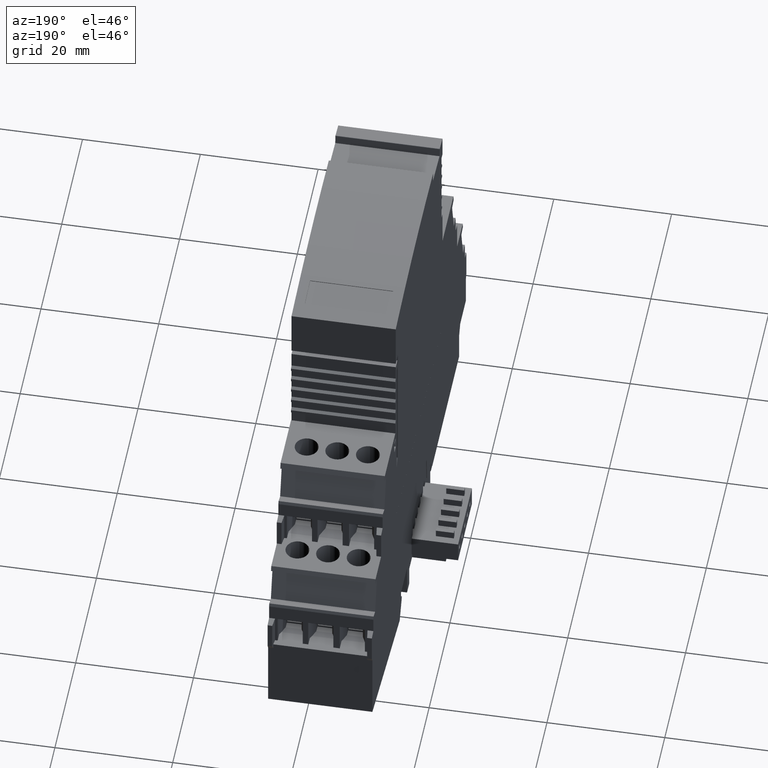
[diagram: clean part render]
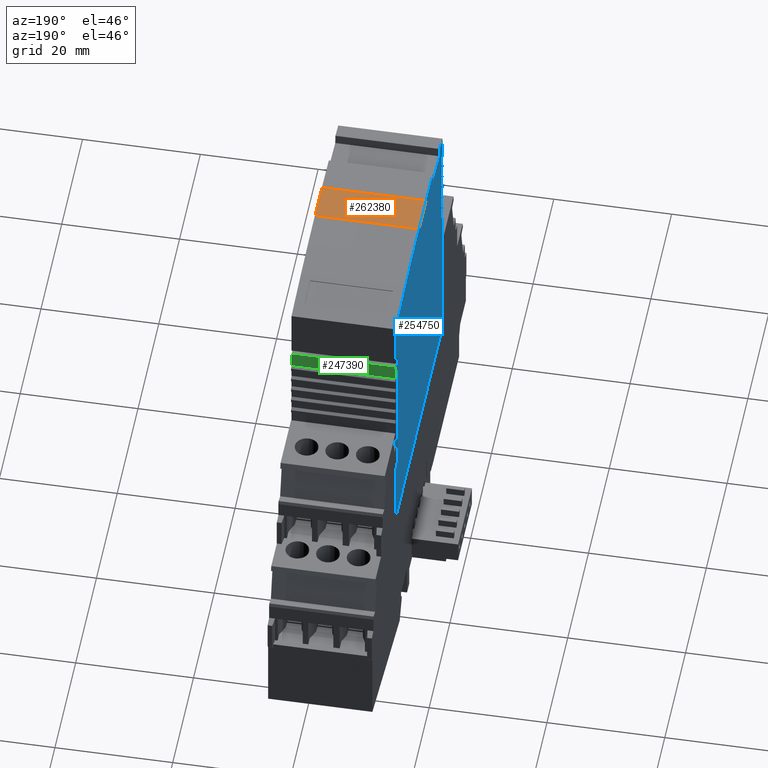
[diagram: same view with three faces highlighted in distinct colors, each labeled with its STEP entity id]
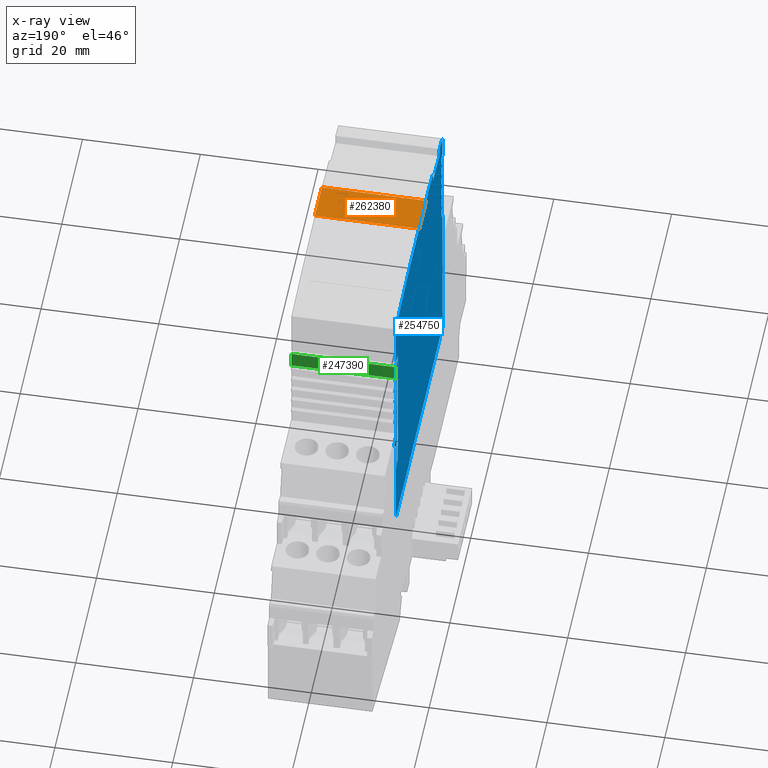
[diagram: x-ray of the same camera — body ghosted, the three highlighted faces saturated]
A machine part, auxiliary view with three faces highlighted in distinct colors.
The next image is the same camera in x-ray (body ghosted, the three faces saturated) — at least one of them is partly hidden behind the body in this view.
Their STEP definitions:

[orange] entity #262380 — the highlighted planar face has unit normal (0, 0.0168, -0.9999).
#200=CARTESIAN_POINT('',(111.425786875025,97.6368417631764,
-18.6373414451668));
#210=VERTEX_POINT('',#200);
#240=CARTESIAN_POINT('',(111.425786875483,97.6368417646088,
13.4136236350484));
#250=DIRECTION('',(2.21531981138869E-11,-4.28486666181899E-11,-1.));
#260=VECTOR('',#250,1.);
#270=LINE('',#240,#260);
#280=CARTESIAN_POINT('',(111.425786875801,97.6368417639938,
-0.939341448721994));
#290=VERTEX_POINT('',#280);
#300=EDGE_CURVE('',#290,#210,#270,.T.);
#236560=CARTESIAN_POINT('',(150.854165358034,98.3001391778686,
-0.939341448745957));
#236570=DIRECTION('',(0.999858526007718,0.0168204628257921,
-6.07643577831348E-13));
#236580=VECTOR('',#236570,1.);
#236590=LINE('',#236560,#236580);
#236600=CARTESIAN_POINT('',(118.15302014598,97.750012951915,
-0.939341448726081));
#236610=VERTEX_POINT('',#236600);
#236620=EDGE_CURVE('',#290,#236610,#236590,.T.);
#252120=CARTESIAN_POINT('',(118.153020145202,97.7500129511501,
-18.6373414451726));
#252130=VERTEX_POINT('',#252120);
#252160=CARTESIAN_POINT('',(150.854165357256,98.3001391770775,
-18.6373414452011));
#252170=DIRECTION('',(0.999858526007718,0.0168204628257921,
-8.7124521834688E-13));
#252180=VECTOR('',#252170,1.);
#252190=LINE('',#252160,#252180);
#252200=EDGE_CURVE('',#210,#252130,#252190,.T.);
#262220=CARTESIAN_POINT('',(111.42578687899,97.6368417641235,
0.820660960238007));
#262230=DIRECTION('',(0.0168204628257921,-0.999858526007718,
4.32152316916065E-11));
#262240=DIRECTION('',(0.999858526007718,0.0168204628257921,
-4.46940582192536E-11));
#262250=AXIS2_PLACEMENT_3D('',#262220,#262230,#262240);
#262260=PLANE('',#262250);
#262270=CARTESIAN_POINT('',(118.153020146294,97.7500129525406,
13.4136236347478));
#262280=DIRECTION('',(2.1914507247867E-11,4.3590010698952E-11,1.));
#262290=VECTOR('',#262280,1.);
#262300=LINE('',#262270,#262290);
#262310=EDGE_CURVE('',#252130,#236610,#262300,.T.);
#262320=ORIENTED_EDGE('',*,*,#262310,.F.);
#262330=ORIENTED_EDGE('',*,*,#236620,.T.);
#262340=ORIENTED_EDGE('',*,*,#300,.F.);
#262350=ORIENTED_EDGE('',*,*,#252200,.F.);
#262360=EDGE_LOOP('',(#262350,#262340,#262330,#262320));
#262370=FACE_OUTER_BOUND('',#262360,.T.);
#262380=ADVANCED_FACE('',(#262370),#262260,.F.);

[blue] entity #254750 — the highlighted planar face has unit normal (-1, -0, -0).
#100=CARTESIAN_POINT('',(104.706166900064,97.2974562768639,
-18.637341445151));
#110=VERTEX_POINT('',#100);
#160=CARTESIAN_POINT('',(150.854165357256,99.628237028916,
-18.6373414452595));
#170=DIRECTION('',(0.99872697423682,0.0504423525597932,
-2.34914766661072E-12));
#180=VECTOR('',#170,1.);
#190=LINE('',#160,#180);
#200=CARTESIAN_POINT('',(111.425786875025,97.6368417631764,
-18.6373414451668));
#210=VERTEX_POINT('',#200);
#220=EDGE_CURVE('',#110,#210,#190,.T.);
#45610=CARTESIAN_POINT('',(95.6530205022971,71.8738971792623,
-18.6373414440321));
#45620=VERTEX_POINT('',#45610);
#52030=CARTESIAN_POINT('',(95.6530205022971,51.1748719510808,
-18.6373414431222));
#52040=VERTEX_POINT('',#52030);
#52070=CARTESIAN_POINT('',(95.6530205022971,47.3424286051269,
-18.6373414429537));
#52080=DIRECTION('',(-2.58276127882993E-26,-1.,4.39608926050624E-11));
#52090=VECTOR('',#52080,1.);
#52100=LINE('',#52070,#52090);
#52110=EDGE_CURVE('',#45620,#52040,#52100,.T.);
#52180=CARTESIAN_POINT('',(140.653020451244,51.1748719510808,
-18.6373414431281));
#52190=VERTEX_POINT('',#52180);
#52220=CARTESIAN_POINT('',(150.854165357256,51.1748719510808,
-18.6373414431295));
#52230=DIRECTION('',(1.,-2.48441521817153E-16,-1.3182048241892E-13));
#52240=VECTOR('',#52230,1.);
#52250=LINE('',#52220,#52240);
#52260=EDGE_CURVE('',#52040,#52190,#52250,.T.);
#52330=CARTESIAN_POINT('',(140.653020451249,68.3024770570695,
-18.6373414438811));
#52340=VERTEX_POINT('',#52330);
#52370=CARTESIAN_POINT('',(140.653020451244,47.3424286051269,
-18.6373414429596));
#52380=DIRECTION('',(2.58276127882993E-26,1.,-4.39608926050624E-11));
#52390=VECTOR('',#52380,1.);
#52400=LINE('',#52370,#52390);
#52410=EDGE_CURVE('',#52190,#52340,#52400,.T.);
#52640=CARTESIAN_POINT('',(140.660999291445,68.301822478959,
-18.637341443881));
#52650=VERTEX_POINT('',#52640);
#52680=CARTESIAN_POINT('',(150.854165357256,67.4655827223891,
-18.6373414438456));
#52690=DIRECTION('',(0.996651672605884,-0.0817645613447162,
3.46306617125706E-12));
#52700=VECTOR('',#52690,1.);
#52710=LINE('',#52680,#52700);
#52720=EDGE_CURVE('',#52340,#52650,#52710,.T.);
#242300=CARTESIAN_POINT('',(141.787510168574,69.4428365188626,
-18.6373414439313));
#242310=VERTEX_POINT('',#242300);
#242340=CARTESIAN_POINT('',(119.968015374366,47.3424286051269,
-18.6373414429569));
#242350=DIRECTION('',(-0.702569732676626,-0.711614903389955,
3.1375848293053E-11));
#242360=VECTOR('',#242350,1.);
#242370=LINE('',#242340,#242360);
#242380=EDGE_CURVE('',#242310,#52650,#242370,.T.);
#242590=CARTESIAN_POINT('',(141.825489479447,70.167524955897,
-18.6373414439632));
#242600=VERTEX_POINT('',#242590);
#242680=CARTESIAN_POINT('',(140.701590320517,70.1871426886483,
-18.6373414439639));
#242690=VERTEX_POINT('',#242680);
#242720=CARTESIAN_POINT('',(150.854165357256,70.0099288321934,
-18.6373414439575));
#242730=DIRECTION('',(0.999847695156391,-0.0174524064372835,
6.35423844768312E-13));
#242740=VECTOR('',#242730,1.);
#242750=LINE('',#242720,#242740);
#242760=EDGE_CURVE('',#242690,#242600,#242750,.T.);
#242980=CARTESIAN_POINT('',(141.11874753296,73.8030236818366,
-18.6373414441229));
#242990=VERTEX_POINT('',#242980);
#243020=CARTESIAN_POINT('',(150.854165357256,73.8030236818368,
-18.6373414441242));
#243030=DIRECTION('',(-1.,-2.37310172835481E-14,1.31820482419987E-13));
#243040=VECTOR('',#243030,1.);
#243050=LINE('',#243020,#243040);
#243060=CARTESIAN_POINT('',(140.61874753297,73.8030236818365,
-18.6373414441228));
#243070=VERTEX_POINT('',#243060);
#243080=EDGE_CURVE('',#242990,#243070,#243050,.T.);
#243350=CARTESIAN_POINT('',(141.11874753296,74.3030224894044,
-18.6373414441449));
#243360=VERTEX_POINT('',#243350);
#243440=CARTESIAN_POINT('',(140.618747532951,74.5917008742754,
-18.6373414441575));
#243450=VERTEX_POINT('',#243440);
#243480=CARTESIAN_POINT('',(150.854165357256,68.6822131023773,
-18.6373414438991));
#243490=DIRECTION('',(0.866022966077611,-0.500004222208309,
2.18665231927911E-11));
#243500=VECTOR('',#243490,1.);
#243510=LINE('',#243480,#243500);
#243520=EDGE_CURVE('',#243450,#243360,#243510,.T.);
#243740=CARTESIAN_POINT('',(141.11874753295,76.3030236818358,
-18.6373414442328));
#243750=VERTEX_POINT('',#243740);
#243780=CARTESIAN_POINT('',(150.854165357256,76.3030236818361,
-18.6373414442341));
#243790=DIRECTION('',(-1.,-2.37310172835481E-14,1.31820482419987E-13));
#243800=VECTOR('',#243790,1.);
#243810=LINE('',#243780,#243800);
#243820=CARTESIAN_POINT('',(140.618747532951,76.3030236818358,
-18.6373414442328));
#243830=VERTEX_POINT('',#243820);
#243840=EDGE_CURVE('',#243750,#243830,#243810,.T.);
#244110=CARTESIAN_POINT('',(141.11874753295,76.8030224894037,
-18.6373414442548));
#244120=VERTEX_POINT('',#244110);
#244200=CARTESIAN_POINT('',(140.618747532951,77.0917008742692,
-18.6373414442674));
#244210=VERTEX_POINT('',#244200);
#244240=CARTESIAN_POINT('',(150.854165357256,71.1822131023711,
-18.637341444009));
#244250=DIRECTION('',(0.866022966077611,-0.500004222208309,
2.18665231927911E-11));
#244260=VECTOR('',#244250,1.);
#244270=LINE('',#244240,#244260);
#244280=EDGE_CURVE('',#244210,#244120,#244270,.T.);
#244500=CARTESIAN_POINT('',(140.618747532951,78.8030236818358,
-18.6373414443427));
#244510=VERTEX_POINT('',#244500);
#244540=CARTESIAN_POINT('',(140.618747532951,47.3424286051269,
-18.6373414429596));
#244550=DIRECTION('',(-1.38778518431033E-17,-1.,4.39608926050624E-11));
#244560=VECTOR('',#244550,1.);
#244570=LINE('',#244540,#244560);
#244580=EDGE_CURVE('',#244510,#244210,#244570,.T.);
#244810=CARTESIAN_POINT('',(141.11874753422,78.8030236818358,
-18.6373414443427));
#244820=VERTEX_POINT('',#244810);
#244850=CARTESIAN_POINT('',(150.854165357256,78.803023681836,
-18.637341444344));
#244860=DIRECTION('',(-1.,-2.37310172835481E-14,1.31820482419987E-13));
#244870=VECTOR('',#244860,1.);
#244880=LINE('',#244850,#244870);
#244890=EDGE_CURVE('',#244820,#244510,#244880,.T.);
#245110=CARTESIAN_POINT('',(141.11874753422,79.303022489403,
-18.6373414443647));
#245120=VERTEX_POINT('',#245110);
#245200=CARTESIAN_POINT('',(140.618747534221,79.5917008742685,
-18.6373414443773));
#245210=VERTEX_POINT('',#245200);
#245240=CARTESIAN_POINT('',(150.854165357256,73.6822131031036,
-18.6373414441189));
#245250=DIRECTION('',(0.866022966077611,-0.500004222208309,
2.18665231927911E-11));
#245260=VECTOR('',#245250,1.);
#245270=LINE('',#245240,#245260);
#245280=EDGE_CURVE('',#245210,#245120,#245270,.T.);
#245500=CARTESIAN_POINT('',(141.11874753295,81.3030236818351,
-18.6373414444526));
#245510=VERTEX_POINT('',#245500);
#245540=CARTESIAN_POINT('',(150.854165357256,81.3030236818353,
-18.6373414444539));
#245550=DIRECTION('',(-1.,-2.37310172835481E-14,1.31820482419987E-13));
#245560=VECTOR('',#245550,1.);
#245570=LINE('',#245540,#245560);
#245580=CARTESIAN_POINT('',(140.618747534221,81.3030236818351,
-18.6373414444526));
#245590=VERTEX_POINT('',#245580);
#245600=EDGE_CURVE('',#245510,#245590,#245570,.T.);
#245870=CARTESIAN_POINT('',(141.11874753295,81.8030224893988,
-18.6373414444746));
#245880=VERTEX_POINT('',#245870);
#245960=CARTESIAN_POINT('',(140.618747532951,82.0917008742644,
-18.6373414444872));
#245970=VERTEX_POINT('',#245960);
#246000=CARTESIAN_POINT('',(150.854165357256,76.1822131023661,
-18.6373414442288));
#246010=DIRECTION('',(0.866022966077611,-0.500004222208309,
2.18665231927911E-11));
#246020=VECTOR('',#246010,1.);
#246030=LINE('',#246000,#246020);
#246040=EDGE_CURVE('',#245970,#245880,#246030,.T.);
#246260=CARTESIAN_POINT('',(140.618747532951,83.8030236818351,
-18.6373414445625));
#246270=VERTEX_POINT('',#246260);
#246300=CARTESIAN_POINT('',(140.618747532951,47.3424286051269,
-18.6373414429596));
#246310=DIRECTION('',(-1.38778518431033E-17,-1.,4.39608926050624E-11));
#246320=VECTOR('',#246310,1.);
#246330=LINE('',#246300,#246320);
#246340=EDGE_CURVE('',#246270,#245970,#246330,.T.);
#246570=CARTESIAN_POINT('',(141.11874753295,83.8030236818351,
-18.6373414445625));
#246580=VERTEX_POINT('',#246570);
#246610=CARTESIAN_POINT('',(150.854165357256,83.8030236818353,
-18.6373414445638));
#246620=DIRECTION('',(-1.,-2.37310172835481E-14,1.31820482419987E-13));
#246630=VECTOR('',#246620,1.);
#246640=LINE('',#246610,#246630);
#246650=EDGE_CURVE('',#246580,#246270,#246640,.T.);
#246870=CARTESIAN_POINT('',(141.11874753295,84.3030224893988,
-18.6373414445845));
#246880=VERTEX_POINT('',#246870);
#246960=CARTESIAN_POINT('',(140.618747532951,84.5917008742643,
-18.6373414445971));
#246970=VERTEX_POINT('',#246960);
#247000=CARTESIAN_POINT('',(150.854165357256,78.6822131023661,
-18.6373414443387));
#247010=DIRECTION('',(0.866022966077611,-0.500004222208309,
2.18665231927911E-11));
#247020=VECTOR('',#247010,1.);
#247030=LINE('',#247000,#247020);
#247040=EDGE_CURVE('',#246970,#246880,#247030,.T.);
#247210=CARTESIAN_POINT('',(140.618747532951,47.3424286051269,
-18.6373414429596));
#247220=DIRECTION('',(-1.38778518431033E-17,-1.,4.39608926050624E-11));
#247230=VECTOR('',#247220,1.);
#247240=LINE('',#247210,#247230);
#247250=CARTESIAN_POINT('',(140.618747532951,87.33671628067,
-18.6373414447178));
#247260=VERTEX_POINT('',#247250);
#247270=EDGE_CURVE('',#247260,#246970,#247240,.T.);
#247570=CARTESIAN_POINT('',(139.031107826439,87.3644286348162,
-18.6373414447188));
#247580=VERTEX_POINT('',#247570);
#247610=CARTESIAN_POINT('',(150.854165357256,87.1580563979657,
-18.6373414447113));
#247620=DIRECTION('',(0.999847695156391,-0.0174524064372835,
6.35423844768312E-13));
#247630=VECTOR('',#247620,1.);
#247640=LINE('',#247610,#247630);
#247650=EDGE_CURVE('',#247580,#247260,#247640,.T.);
#247870=CARTESIAN_POINT('',(139.800214176932,85.7143909330972,
-18.6373414446464));
#247880=VERTEX_POINT('',#247870);
#247910=CARTESIAN_POINT('',(150.854165357256,85.5214434975309,
-18.6373414446394));
#247920=DIRECTION('',(-0.999847695156391,0.0174524064373205,
-6.35423844769941E-13));
#247930=VECTOR('',#247920,1.);
#247940=LINE('',#247910,#247930);
#247950=CARTESIAN_POINT('',(139.00254934318,85.7283142245477,
-18.6373414446469));
#247960=VERTEX_POINT('',#247950);
#247970=EDGE_CURVE('',#247880,#247960,#247940,.T.);
#248250=CARTESIAN_POINT('',(139.703264630771,70.5316968518992,
-18.6373414439789));
#248260=VERTEX_POINT('',#248250);
#248290=CARTESIAN_POINT('',(139.555188866331,47.3424286051269,
-18.6373414429595));
#248300=DIRECTION('',(0.00638539966258307,0.999979613127762,
-4.39608383648356E-11));
#248310=VECTOR('',#248300,1.);
#248320=LINE('',#248290,#248310);
#248330=EDGE_CURVE('',#248260,#247880,#248320,.T.);
#248570=CARTESIAN_POINT('',(139.860424818334,62.2155368409394,
-18.6373414436134));
#248580=VERTEX_POINT('',#248570);
#248610=CARTESIAN_POINT('',(140.141499313883,47.3424286051269,
-18.6373414429596));
#248620=DIRECTION('',(-0.0188947940777051,0.999821477443229,
-4.3950553498085E-11));
#248630=VECTOR('',#248620,1.);
#248640=LINE('',#248610,#248630);
#248650=EDGE_CURVE('',#248580,#248260,#248640,.T.);
#248860=CARTESIAN_POINT('',(138.332521217365,47.3424286051269,
-18.6373414429593));
#248870=DIRECTION('',(0.0174524064373205,0.999847695156391,
-4.3956496589456E-11));
#248880=VECTOR('',#248870,1.);
#248890=LINE('',#248860,#248880);
#248900=EDGE_CURVE('',#247960,#247580,#248890,.T.);
#249100=CARTESIAN_POINT('',(141.118747532951,47.3424286051269,
-18.6373414429597));
#249110=DIRECTION('',(2.37310170873274E-14,-1.,4.39608926050624E-11));
#249120=VECTOR('',#249110,1.);
#249130=LINE('',#249100,#249120);
#249140=EDGE_CURVE('',#246880,#246580,#249130,.T.);
#249340=CARTESIAN_POINT('',(141.118747532951,47.3424286051269,
-18.6373414429597));
#249350=DIRECTION('',(2.37310170873274E-14,-1.,4.39608926050624E-11));
#249360=VECTOR('',#249350,1.);
#249370=LINE('',#249340,#249360);
#249380=EDGE_CURVE('',#245880,#245510,#249370,.T.);
#249570=CARTESIAN_POINT('',(140.618747534221,47.3424286051269,
-18.6373414429596));
#249580=DIRECTION('',(-1.38778518431033E-17,-1.,4.39608926050624E-11));
#249590=VECTOR('',#249580,1.);
#249600=LINE('',#249570,#249590);
#249610=EDGE_CURVE('',#245590,#245210,#249600,.T.);
#249820=CARTESIAN_POINT('',(141.118747534221,47.3424286051269,
-18.6373414429597));
#249830=DIRECTION('',(2.37310170873274E-14,-1.,4.39608926050624E-11));
#249840=VECTOR('',#249830,1.);
#249850=LINE('',#249820,#249840);
#249860=EDGE_CURVE('',#245120,#244820,#249850,.T.);
#250060=CARTESIAN_POINT('',(141.118747532951,47.3424286051269,
-18.6373414429597));
#250070=DIRECTION('',(2.37310170873274E-14,-1.,4.39608926050624E-11));
#250080=VECTOR('',#250070,1.);
#250090=LINE('',#250060,#250080);
#250100=EDGE_CURVE('',#244120,#243750,#250090,.T.);
#250290=CARTESIAN_POINT('',(140.618747532951,47.3424286051269,
-18.6373414429596));
#250300=DIRECTION('',(9.71444506194123E-17,-1.,4.39608926050624E-11));
#250310=VECTOR('',#250300,1.);
#250320=LINE('',#250290,#250310);
#250330=EDGE_CURVE('',#243830,#243450,#250320,.T.);
#250540=CARTESIAN_POINT('',(141.118747532961,47.3424286051269,
-18.6373414429597));
#250550=DIRECTION('',(2.37310170873274E-14,-1.,4.39608926050624E-11));
#250560=VECTOR('',#250550,1.);
#250570=LINE('',#250540,#250560);
#250580=EDGE_CURVE('',#243360,#242990,#250570,.T.);
#250780=CARTESIAN_POINT('',(141.224981383152,47.3424286051269,
-18.6373414429597));
#250790=DIRECTION('',(0.0229048063085589,-0.999737650510356,
4.39463400797945E-11));
#250800=VECTOR('',#250790,1.);
#250810=LINE('',#250780,#250800);
#250820=EDGE_CURVE('',#243070,#242690,#250810,.T.);
#250990=CARTESIAN_POINT('',(140.629276867781,47.3424286051269,
-18.6373414429596));
#251000=DIRECTION('',(-0.0523359562429438,-0.998629534754574,
4.39075401747547E-11));
#251010=VECTOR('',#251000,1.);
#251020=LINE('',#250990,#251010);
#251030=EDGE_CURVE('',#242600,#242310,#251020,.T.);
#251180=CARTESIAN_POINT('',(154.775787424686,60.974871951032,
-18.6373414435608));
#251190=DIRECTION('',(-1.3182048241894E-13,-4.39608926050624E-11,-1.));
#251200=DIRECTION('',(1.,-5.81906384418097E-24,-1.3182048241894E-13));
#251210=AXIS2_PLACEMENT_3D('',#251180,#251190,#251200);
#251220=PLANE('',#251210);
#251230=ORIENTED_EDGE('',*,*,#242380,.T.);
#251240=ORIENTED_EDGE('',*,*,#251030,.T.);
#251250=ORIENTED_EDGE('',*,*,#242760,.T.);
#251260=ORIENTED_EDGE('',*,*,#250820,.T.);
#251270=ORIENTED_EDGE('',*,*,#243080,.T.);
#251280=ORIENTED_EDGE('',*,*,#250580,.T.);
#251290=ORIENTED_EDGE('',*,*,#243520,.T.);
#251300=ORIENTED_EDGE('',*,*,#250330,.T.);
#251310=ORIENTED_EDGE('',*,*,#243840,.T.);
#251320=ORIENTED_EDGE('',*,*,#250100,.T.);
#251330=ORIENTED_EDGE('',*,*,#244280,.T.);
#251340=ORIENTED_EDGE('',*,*,#244580,.T.);
#251350=ORIENTED_EDGE('',*,*,#244890,.T.);
#251360=ORIENTED_EDGE('',*,*,#249860,.T.);
#251370=ORIENTED_EDGE('',*,*,#245280,.T.);
#251380=ORIENTED_EDGE('',*,*,#249610,.T.);
#251390=ORIENTED_EDGE('',*,*,#245600,.T.);
#251400=ORIENTED_EDGE('',*,*,#249380,.T.);
#251410=ORIENTED_EDGE('',*,*,#246040,.T.);
#251420=ORIENTED_EDGE('',*,*,#246340,.T.);
#251430=ORIENTED_EDGE('',*,*,#246650,.T.);
#251440=ORIENTED_EDGE('',*,*,#249140,.T.);
#251450=ORIENTED_EDGE('',*,*,#247040,.T.);
#251460=ORIENTED_EDGE('',*,*,#247270,.T.);
#251470=ORIENTED_EDGE('',*,*,#247650,.T.);
#251480=ORIENTED_EDGE('',*,*,#248900,.T.);
#251490=ORIENTED_EDGE('',*,*,#247970,.T.);
#251500=ORIENTED_EDGE('',*,*,#248330,.T.);
#251510=ORIENTED_EDGE('',*,*,#248650,.T.);
#251520=CARTESIAN_POINT('',(150.234000021749,47.3424286051269,
-18.6373414429609));
#251530=DIRECTION('',(0.572069871263727,-0.820204890495236,
3.59815906236102E-11));
#251540=VECTOR('',#251530,1.);
#251550=LINE('',#251520,#251540);
#251560=CARTESIAN_POINT('',(138.802535257627,63.7322854670947,
-18.6373414436799));
#251570=VERTEX_POINT('',#251560);
#251580=EDGE_CURVE('',#251570,#248580,#251550,.T.);
#251590=ORIENTED_EDGE('',*,*,#251580,.T.);
#251600=CARTESIAN_POINT('',(138.902656440283,47.3424286051269,
-18.6373414429594));
#251610=DIRECTION('',(0.00610861438498844,-0.999981342241092,
4.39592675583323E-11));
#251620=VECTOR('',#251610,1.);
#251630=LINE('',#251600,#251620);
#251640=CARTESIAN_POINT('',(138.653068635205,88.1999999950882,
-18.6373414447555));
#251650=VERTEX_POINT('',#251640);
#251660=EDGE_CURVE('',#251650,#251570,#251630,.T.);
#251670=ORIENTED_EDGE('',*,*,#251660,.T.);
#251680=CARTESIAN_POINT('',(150.854165357256,88.1999999950882,
-18.6373414447571));
#251690=DIRECTION('',(-1.,5.82132095718191E-24,1.31820482418933E-13));
#251700=VECTOR('',#251690,1.);
#251710=LINE('',#251680,#251700);
#251720=CARTESIAN_POINT('',(140.653020204023,88.1999999950882,
-18.6373414447558));
#251730=VERTEX_POINT('',#251720);
#251740=EDGE_CURVE('',#251730,#251650,#251710,.T.);
#251750=ORIENTED_EDGE('',*,*,#251740,.T.);
#251760=CARTESIAN_POINT('',(140.653020204023,47.3424286051269,
-18.6373414429596));
#251770=DIRECTION('',(-2.87053773705456E-26,-1.,4.39608926050624E-11));
#251780=VECTOR('',#251770,1.);
#251790=LINE('',#251760,#251780);
#251800=CARTESIAN_POINT('',(140.653020204023,96.4803578846363,
-18.6373414451198));
#251810=VERTEX_POINT('',#251800);
#251820=EDGE_CURVE('',#251810,#251730,#251790,.T.);
#251830=ORIENTED_EDGE('',*,*,#251820,.T.);
#251840=CARTESIAN_POINT('',(150.854165357256,95.407888655904,
-18.637341445074));
#251850=DIRECTION('',(0.994518999807072,-0.104556009022637,
4.46527662747454E-12));
#251860=VECTOR('',#251850,1.);
#251870=LINE('',#251840,#251860);
#251880=CARTESIAN_POINT('',(137.779672688485,96.7824393419217,
-18.6373414451327));
#251890=VERTEX_POINT('',#251880);
#251900=EDGE_CURVE('',#251890,#251810,#251870,.T.);
#251910=ORIENTED_EDGE('',*,*,#251900,.T.);
#251920=CARTESIAN_POINT('',(150.854165357256,95.6903223389921,
-18.6373414450864));
#251930=DIRECTION('',(0.996529490586278,-0.0832404612664598,
3.52795648091481E-12));
#251940=VECTOR('',#251930,1.);
#251950=LINE('',#251920,#251940);
#251960=CARTESIAN_POINT('',(131.635722974602,97.2956456373661,
-18.6373414451544));
#251970=VERTEX_POINT('',#251960);
#251980=EDGE_CURVE('',#251970,#251890,#251950,.T.);
#251990=ORIENTED_EDGE('',*,*,#251980,.T.);
#252000=CARTESIAN_POINT('',(150.854165357256,96.3249865169571,
-18.6373414451143));
#252010=DIRECTION('',(0.99872697423682,-0.0504423525597932,
2.08583973139138E-12));
#252020=VECTOR('',#252010,1.);
#252030=LINE('',#252000,#252020);
#252040=CARTESIAN_POINT('',(124.880253497342,97.6368417618763,
-18.6373414451685));
#252050=VERTEX_POINT('',#252040);
#252060=EDGE_CURVE('',#252050,#251970,#252030,.T.);
#252070=ORIENTED_EDGE('',*,*,#252060,.T.);
#252080=CARTESIAN_POINT('',(150.854165357256,97.1998867251965,
-18.6373414451527));
#252090=DIRECTION('',(0.999858526007718,-0.0168204628257921,
6.07641826314774E-13));
#252100=VECTOR('',#252090,1.);
#252110=LINE('',#252080,#252100);
#252120=CARTESIAN_POINT('',(118.153020145202,97.7500129511501,
-18.6373414451726));
#252130=VERTEX_POINT('',#252120);
#252140=EDGE_CURVE('',#252130,#252050,#252110,.T.);
#252150=ORIENTED_EDGE('',*,*,#252140,.T.);
#252160=CARTESIAN_POINT('',(150.854165357256,98.3001391770775,
-18.6373414452011));
#252170=DIRECTION('',(0.999858526007718,0.0168204628257921,
-8.7124521834688E-13));
#252180=VECTOR('',#252170,1.);
#252190=LINE('',#252160,#252180);
#252200=EDGE_CURVE('',#210,#252130,#252190,.T.);
#252210=ORIENTED_EDGE('',*,*,#252200,.T.);
#252220=ORIENTED_EDGE('',*,*,#220,.T.);
#252230=CARTESIAN_POINT('',(81.168708475782,47.3424286051269,
-18.6373414429518));
#252240=DIRECTION('',(0.426230040303356,0.904614809044711,
-3.98238416662425E-11));
#252250=VECTOR('',#252240,1.);
#252260=LINE('',#252230,#252250);
#252270=CARTESIAN_POINT('',(104.67558412699,97.2325485350145,
-18.6373414451481));
#252280=VERTEX_POINT('',#252270);
#252290=EDGE_CURVE('',#252280,#110,#252260,.T.);
#252300=ORIENTED_EDGE('',*,*,#252290,.T.);
#252310=CARTESIAN_POINT('',(108.839944141483,47.3424286051269,
-18.6373414429554));
#252320=DIRECTION('',(-0.0831813617632818,0.996534425424032,
-4.37975772427882E-11));
#252330=VECTOR('',#252320,1.);
#252340=LINE('',#252310,#252330);
#252350=CARTESIAN_POINT('',(104.803820726191,95.696240605037,
-18.6373414450806));
#252360=VERTEX_POINT('',#252350);
#252370=EDGE_CURVE('',#252360,#252280,#252340,.T.);
#252380=ORIENTED_EDGE('',*,*,#252370,.T.);
#252390=CARTESIAN_POINT('',(150.854165357256,99.5400921353832,
-18.6373414452556));
#252400=DIRECTION('',(0.996534425424034,0.0831813617632642,
-3.7880977018107E-12));
#252410=VECTOR('',#252400,1.);
#252420=LINE('',#252390,#252410);
#252430=CARTESIAN_POINT('',(98.5007404853735,95.1701184920132,
-18.6373414450566));
#252440=VERTEX_POINT('',#252430);
#252450=EDGE_CURVE('',#252440,#252360,#252420,.T.);
#252460=ORIENTED_EDGE('',*,*,#252450,.T.);
#252470=CARTESIAN_POINT('',(102.492948153553,47.3424286051269,
-18.6373414429546));
#252480=DIRECTION('',(0.0831813617632674,-0.996534425424034,
4.37975772427889E-11));
#252490=VECTOR('',#252480,1.);
#252500=LINE('',#252470,#252490);
#252510=CARTESIAN_POINT('',(98.3725038859704,96.7064264244097,
-18.6373414451241));
#252520=VERTEX_POINT('',#252510);
#252530=EDGE_CURVE('',#252520,#252440,#252500,.T.);
#252540=ORIENTED_EDGE('',*,*,#252530,.T.);
#252550=CARTESIAN_POINT('',(132.644914531751,47.3424286051269,
-18.6373414429586));
#252560=DIRECTION('',(0.570304385120311,-0.821433447281363,
3.60358549867467E-11));
#252570=VECTOR('',#252560,1.);
#252580=LINE('',#252550,#252570);
#252590=CARTESIAN_POINT('',(98.3315919332669,96.765353634547,
-18.6373414451267));
#252600=VERTEX_POINT('',#252590);
#252610=EDGE_CURVE('',#252600,#252520,#252580,.T.);
#252620=ORIENTED_EDGE('',*,*,#252610,.T.);
#252630=CARTESIAN_POINT('',(150.854165357256,102.353925241328,
-18.6373414453793));
#252640=DIRECTION('',(0.994386794363519,0.105805969564314,
-4.78241912299292E-12));
#252650=VECTOR('',#252640,1.);
#252660=LINE('',#252630,#252650);
#252670=CARTESIAN_POINT('',(95.6530201446731,96.4803449369791,
-18.6373414451138));
#252680=VERTEX_POINT('',#252670);
#252690=EDGE_CURVE('',#252680,#252600,#252660,.T.);
#252700=ORIENTED_EDGE('',*,*,#252690,.T.);
#252710=CARTESIAN_POINT('',(95.6530201446743,47.3424286051269,
-18.6373414429537));
#252720=DIRECTION('',(2.37448949391995E-14,1.,-4.39608926050624E-11));
#252730=VECTOR('',#252720,1.);
#252740=LINE('',#252710,#252730);
#252750=CARTESIAN_POINT('',(95.6530201446753,92.7499999951019,
-18.6373414449499));
#252760=VERTEX_POINT('',#252750);
#252770=EDGE_CURVE('',#252760,#252680,#252740,.T.);
#252780=ORIENTED_EDGE('',*,*,#252770,.T.);
#252790=CARTESIAN_POINT('',(150.854165357256,92.7499999951007,
-18.6373414449571));
#252800=DIRECTION('',(-1.,2.37448949449886E-14,1.31820482417899E-13));
#252810=VECTOR('',#252800,1.);
#252820=LINE('',#252790,#252810);
#252830=CARTESIAN_POINT('',(96.5530201736806,92.7499999951019,
-18.63734144495));
#252840=VERTEX_POINT('',#252830);
#252850=EDGE_CURVE('',#252840,#252760,#252820,.T.);
#252860=ORIENTED_EDGE('',*,*,#252850,.T.);
#252870=CARTESIAN_POINT('',(96.5530201729038,47.3424286051269,
-18.6373414429538));
#252880=DIRECTION('',(2.37448949022023E-14,1.,-4.39608926050624E-11));
#252890=VECTOR('',#252880,1.);
#252900=LINE('',#252870,#252890);
#252910=CARTESIAN_POINT('',(96.5530201729048,91.0386771875312,
-18.6373414448747));
#252920=VERTEX_POINT('',#252910);
#252930=EDGE_CURVE('',#252920,#252840,#252900,.T.);
#252940=ORIENTED_EDGE('',*,*,#252930,.T.);
#252950=CARTESIAN_POINT('',(150.854165357256,122.389810963918,
-18.6373414462601));
#252960=DIRECTION('',(0.866022966077611,0.500004222208309,
-2.20947922318181E-11));
#252970=VECTOR('',#252960,1.);
#252980=LINE('',#252950,#252970);
#252990=CARTESIAN_POINT('',(96.0530201729057,90.7499988026658,
-18.637341444862));
#253000=VERTEX_POINT('',#252990);
#253010=EDGE_CURVE('',#253000,#252920,#252980,.T.);
#253020=ORIENTED_EDGE('',*,*,#253010,.T.);
#253030=CARTESIAN_POINT('',(96.0530201729047,47.3424286051269,
-18.6373414429537));
#253040=DIRECTION('',(2.37448949022023E-14,1.,-4.39608926050624E-11));
#253050=VECTOR('',#253040,1.);
#253060=LINE('',#253030,#253050);
#253070=CARTESIAN_POINT('',(96.0530201729057,90.249999995102,
-18.63734144484));
#253080=VERTEX_POINT('',#253070);
#253090=EDGE_CURVE('',#253080,#253000,#253060,.T.);
#253100=ORIENTED_EDGE('',*,*,#253090,.T.);
#253110=CARTESIAN_POINT('',(150.854165357256,90.2499999951007,
-18.6373414448472));
#253120=DIRECTION('',(-1.,2.37448949079917E-14,1.31820482417899E-13));
#253130=VECTOR('',#253120,1.);
#253140=LINE('',#253110,#253130);
#253150=CARTESIAN_POINT('',(96.5530201736805,90.249999995102,
-18.6373414448401));
#253160=VERTEX_POINT('',#253150);
#253170=EDGE_CURVE('',#253160,#253080,#253140,.T.);
#253180=ORIENTED_EDGE('',*,*,#253170,.T.);
#253190=CARTESIAN_POINT('',(96.5530201729038,47.3424286051269,
-18.6373414429538));
#253200=DIRECTION('',(2.37448949022023E-14,1.,-4.39608926050624E-11));
#253210=VECTOR('',#253200,1.);
#253220=LINE('',#253190,#253210);
#253230=CARTESIAN_POINT('',(96.5530201729048,88.5386771875312,
-18.6373414447648));
#253240=VERTEX_POINT('',#253230);
#253250=EDGE_CURVE('',#253240,#253160,#253220,.T.);
#253260=ORIENTED_EDGE('',*,*,#253250,.T.);
#253270=CARTESIAN_POINT('',(150.854165357256,119.889810963918,
-18.6373414461502));
#253280=DIRECTION('',(0.866022966077611,0.500004222208309,
-2.20947922318181E-11));
#253290=VECTOR('',#253280,1.);
#253300=LINE('',#253270,#253290);
#253310=CARTESIAN_POINT('',(96.0530201729057,88.2499988026657,
-18.6373414447521));
#253320=VERTEX_POINT('',#253310);
#253330=EDGE_CURVE('',#253320,#253240,#253300,.T.);
#253340=ORIENTED_EDGE('',*,*,#253330,.T.);
#253350=CARTESIAN_POINT('',(96.0530201729047,47.3424286051269,
-18.6373414429537));
#253360=DIRECTION('',(2.37448949022023E-14,1.,-4.39608926050624E-11));
#253370=VECTOR('',#253360,1.);
#253380=LINE('',#253350,#253370);
#253390=CARTESIAN_POINT('',(96.0530201729056,87.749999995102,
-18.6373414447301));
#253400=VERTEX_POINT('',#253390);
#253410=EDGE_CURVE('',#253400,#253320,#253380,.T.);
#253420=ORIENTED_EDGE('',*,*,#253410,.T.);
#253430=CARTESIAN_POINT('',(150.854165357256,87.7499999951007,
-18.6373414447373));
#253440=DIRECTION('',(-1.,2.37448949079917E-14,1.31820482417899E-13));
#253450=VECTOR('',#253440,1.);
#253460=LINE('',#253430,#253450);
#253470=CARTESIAN_POINT('',(96.5530201724103,87.749999995102,
-18.6373414447302));
#253480=VERTEX_POINT('',#253470);
#253490=EDGE_CURVE('',#253480,#253400,#253460,.T.);
#253500=ORIENTED_EDGE('',*,*,#253490,.T.);
#253510=CARTESIAN_POINT('',(96.5530201716336,47.3424286051269,
-18.6373414429538));
#253520=DIRECTION('',(2.37448949022023E-14,1.,-4.39608926050624E-11));
#253530=VECTOR('',#253520,1.);
#253540=LINE('',#253510,#253530);
#253550=CARTESIAN_POINT('',(96.5530201716345,86.0386771875326,
-18.6373414446549));
#253560=VERTEX_POINT('',#253550);
#253570=EDGE_CURVE('',#253560,#253480,#253540,.T.);
#253580=ORIENTED_EDGE('',*,*,#253570,.T.);
#253590=CARTESIAN_POINT('',(150.854165357256,117.389810964652,
-18.6373414460403));
#253600=DIRECTION('',(0.866022966077611,0.500004222208309,
-2.20947922318181E-11));
#253610=VECTOR('',#253600,1.);
#253620=LINE('',#253590,#253610);
#253630=CARTESIAN_POINT('',(96.0530201716354,85.7499988026671,
-18.6373414446422));
#253640=VERTEX_POINT('',#253630);
#253650=EDGE_CURVE('',#253640,#253560,#253620,.T.);
#253660=ORIENTED_EDGE('',*,*,#253650,.T.);
#253670=CARTESIAN_POINT('',(96.0530201716345,47.3424286051269,
-18.6373414429537));
#253680=DIRECTION('',(2.37448949022023E-14,1.,-4.39608926050624E-11));
#253690=VECTOR('',#253680,1.);
#253700=LINE('',#253670,#253690);
#253710=CARTESIAN_POINT('',(96.0530201716354,85.2499999951027,
-18.6373414446202));
#253720=VERTEX_POINT('',#253710);
#253730=EDGE_CURVE('',#253720,#253640,#253700,.T.);
#253740=ORIENTED_EDGE('',*,*,#253730,.T.);
#253750=CARTESIAN_POINT('',(150.854165357256,85.2499999951014,
-18.6373414446274));
#253760=DIRECTION('',(-1.,2.37448949079917E-14,1.31820482417899E-13));
#253770=VECTOR('',#253760,1.);
#253780=LINE('',#253750,#253770);
#253790=CARTESIAN_POINT('',(96.5530201736804,85.2499999951027,
-18.6373414446203));
#253800=VERTEX_POINT('',#253790);
#253810=EDGE_CURVE('',#253800,#253720,#253780,.T.);
#253820=ORIENTED_EDGE('',*,*,#253810,.T.);
#253830=CARTESIAN_POINT('',(96.5530201729038,47.3424286051269,
-18.6373414429538));
#253840=DIRECTION('',(2.37448949022023E-14,1.,-4.39608926050624E-11));
#253850=VECTOR('',#253840,1.);
#253860=LINE('',#253830,#253850);
#253870=CARTESIAN_POINT('',(96.5530201729046,83.5386771875333,
-18.637341444545));
#253880=VERTEX_POINT('',#253870);
#253890=EDGE_CURVE('',#253880,#253800,#253860,.T.);
#253900=ORIENTED_EDGE('',*,*,#253890,.T.);
#253910=CARTESIAN_POINT('',(150.854165357256,114.88981096392,
-18.6373414459304));
#253920=DIRECTION('',(0.866022966077611,0.500004222208309,
-2.20947922318181E-11));
#253930=VECTOR('',#253920,1.);
#253940=LINE('',#253910,#253930);
#253950=CARTESIAN_POINT('',(96.0530201729055,83.2499988026679,
-18.6373414445323));
#253960=VERTEX_POINT('',#253950);
#253970=EDGE_CURVE('',#253960,#253880,#253940,.T.);
#253980=ORIENTED_EDGE('',*,*,#253970,.T.);
#253990=CARTESIAN_POINT('',(96.0530201729047,47.3424286051269,
-18.6373414429537));
#254000=DIRECTION('',(2.37448949022023E-14,1.,-4.39608926050624E-11));
#254010=VECTOR('',#254000,1.);
#254020=LINE('',#253990,#254010);
#254030=CARTESIAN_POINT('',(96.0530201729055,82.7499999951027,
-18.6373414445103));
#254040=VERTEX_POINT('',#254030);
#254050=EDGE_CURVE('',#254040,#253960,#254020,.T.);
#254060=ORIENTED_EDGE('',*,*,#254050,.T.);
#254070=CARTESIAN_POINT('',(150.854165357256,82.7499999951014,
-18.6373414445175));
#254080=DIRECTION('',(-1.,2.37448949079917E-14,1.31820482417899E-13));
#254090=VECTOR('',#254080,1.);
#254100=LINE('',#254070,#254090);
#254110=CARTESIAN_POINT('',(96.5530201736803,82.7499999951027,
-18.6373414445104));
#254120=VERTEX_POINT('',#254110);
#254130=EDGE_CURVE('',#254120,#254040,#254100,.T.);
#254140=ORIENTED_EDGE('',*,*,#254130,.T.);
#254150=CARTESIAN_POINT('',(96.5530201729038,47.3424286051269,
-18.6373414429538));
#254160=DIRECTION('',(2.37448949022023E-14,1.,-4.39608926050624E-11));
#254170=VECTOR('',#254160,1.);
#254180=LINE('',#254150,#254170);
#254190=CARTESIAN_POINT('',(96.5530201729046,81.0386771875334,
-18.6373414444351));
#254200=VERTEX_POINT('',#254190);
#254210=EDGE_CURVE('',#254200,#254120,#254180,.T.);
#254220=ORIENTED_EDGE('',*,*,#254210,.T.);
#254230=CARTESIAN_POINT('',(150.854165357256,112.38981096392,
-18.6373414458205));
#254240=DIRECTION('',(0.866022966077611,0.500004222208309,
-2.20947922318181E-11));
#254250=VECTOR('',#254240,1.);
#254260=LINE('',#254230,#254250);
#254270=CARTESIAN_POINT('',(96.0530202349582,80.7499988384944,
-18.6373414444224));
#254280=VERTEX_POINT('',#254270);
#254290=EDGE_CURVE('',#254280,#254200,#254260,.T.);
#254300=ORIENTED_EDGE('',*,*,#254290,.T.);
#254310=CARTESIAN_POINT('',(96.0530202349582,47.3424286051269,
-18.6373414429537));
#254320=DIRECTION('',(-3.69682399887707E-23,1.,-4.39608926050624E-11));
#254330=VECTOR('',#254320,1.);
#254340=LINE('',#254310,#254330);
#254350=CARTESIAN_POINT('',(96.0530202349582,80.2499999951035,
-18.6373414444004));
#254360=VERTEX_POINT('',#254350);
#254370=EDGE_CURVE('',#254360,#254280,#254340,.T.);
#254380=ORIENTED_EDGE('',*,*,#254370,.T.);
#254390=CARTESIAN_POINT('',(150.854165357256,80.2499999951022,
-18.6373414444076));
#254400=DIRECTION('',(-1.,2.37448949079917E-14,1.31820482417899E-13));
#254410=VECTOR('',#254400,1.);
#254420=LINE('',#254390,#254410);
#254430=CARTESIAN_POINT('',(96.5530201736804,80.2499999951035,
-18.6373414444005));
#254440=VERTEX_POINT('',#254430);
#254450=EDGE_CURVE('',#254440,#254360,#254420,.T.);
#254460=ORIENTED_EDGE('',*,*,#254450,.T.);
#254470=CARTESIAN_POINT('',(96.5530201729039,47.3424286051269,
-18.6373414429538));
#254480=DIRECTION('',(2.37448949022023E-14,1.,-4.39608926050624E-11));
#254490=VECTOR('',#254480,1.);
#254500=LINE('',#254470,#254490);
#254510=CARTESIAN_POINT('',(96.5530201729046,78.4616968266163,
-18.6373414443219));
#254520=VERTEX_POINT('',#254510);
#254530=EDGE_CURVE('',#254520,#254440,#254500,.T.);
#254540=ORIENTED_EDGE('',*,*,#254530,.T.);
#254550=CARTESIAN_POINT('',(150.854165357256,88.9121335831848,
-18.6373414447884));
#254560=DIRECTION('',(0.981979913751393,0.18898531421464,
-8.43741244240707E-12));
#254570=VECTOR('',#254560,1.);
#254580=LINE('',#254550,#254570);
#254590=CARTESIAN_POINT('',(95.6530205022778,78.288488884005,
-18.6373414443141));
#254600=VERTEX_POINT('',#254590);
#254610=EDGE_CURVE('',#254600,#254520,#254580,.T.);
#254620=ORIENTED_EDGE('',*,*,#254610,.T.);
#254630=CARTESIAN_POINT('',(95.6530205023017,47.3424286051269,
-18.6373414429537));
#254640=DIRECTION('',(2.90082999581505E-26,1.,-4.39608926050624E-11));
#254650=VECTOR('',#254640,1.);
#254660=LINE('',#254630,#254650);
#254670=EDGE_CURVE('',#45620,#254600,#254660,.T.);
#254680=ORIENTED_EDGE('',*,*,#254670,.T.);
#254690=ORIENTED_EDGE('',*,*,#52110,.F.);
#254700=ORIENTED_EDGE('',*,*,#52260,.F.);
#254710=ORIENTED_EDGE('',*,*,#52410,.F.);
#254720=ORIENTED_EDGE('',*,*,#52720,.F.);
#254730=EDGE_LOOP('',(#254720,#254710,#254700,#254690,#254680,#254620,
#254540,#254460,#254380,#254300,#254220,#254140,#254060,#253980,#253900,
#253820,#253740,#253660,#253580,#253500,#253420,#253340,#253260,#253180,
#253100,#253020,#252940,#252860,#252780,#252700,#252620,#252540,#252460,
#252380,#252300,#252220,#252210,#252150,#252070,#251990,#251910,#251830,
#251750,#251670,#251590,#251510,#251500,#251490,#251480,#251470,#251460,
#251450,#251440,#251430,#251420,#251410,#251400,#251390,#251380,#251370,
#251360,#251350,#251340,#251330,#251320,#251310,#251300,#251290,#251280,
#251270,#251260,#251250,#251240,#251230));
#254740=FACE_OUTER_BOUND('',#254730,.T.);
#254750=ADVANCED_FACE('',(#254740),#251220,.T.);

[green] entity #247390 — the highlighted planar face has unit normal (0, 1, -0).
#237640=CARTESIAN_POINT('',(140.618747532949,87.3367162814344,
-0.939341448265342));
#237650=VERTEX_POINT('',#237640);
#237680=CARTESIAN_POINT('',(140.618747532949,47.3424286058977,
-0.939341446507157));
#237690=DIRECTION('',(-1.38778518431033E-17,-1.,4.39608926050624E-11));
#237700=VECTOR('',#237690,1.);
#237710=LINE('',#237680,#237700);
#237720=CARTESIAN_POINT('',(140.618747532949,84.5917008750424,
-0.93934144814467));
#237730=VERTEX_POINT('',#237720);
#237740=EDGE_CURVE('',#237650,#237730,#237710,.T.);
#246920=CARTESIAN_POINT('',(140.618747532948,84.5917008756727,
13.4136236343332));
#246930=DIRECTION('',(-6.0246794527636E-14,4.3919569054089E-11,1.));
#246940=VECTOR('',#246930,1.);
#246950=LINE('',#246920,#246940);
#246960=CARTESIAN_POINT('',(140.618747532951,84.5917008742643,
-18.6373414445971));
#246970=VERTEX_POINT('',#246960);
#246980=EDGE_CURVE('',#246970,#237730,#246950,.T.);
#247160=CARTESIAN_POINT('',(140.61874753295,85.9030236818081,
-18.3383414414426));
#247170=DIRECTION('',(1.,-1.3877849191399E-17,6.02467945276302E-14));
#247180=DIRECTION('',(1.38778519785136E-17,1.,-4.62616249405743E-11));
#247190=AXIS2_PLACEMENT_3D('',#247160,#247170,#247180);
#247200=PLANE('',#247190);
#247210=CARTESIAN_POINT('',(140.618747532951,47.3424286051269,
-18.6373414429596));
#247220=DIRECTION('',(-1.38778518431033E-17,-1.,4.39608926050624E-11));
#247230=VECTOR('',#247220,1.);
#247240=LINE('',#247210,#247230);
#247250=CARTESIAN_POINT('',(140.618747532951,87.33671628067,
-18.6373414447178));
#247260=VERTEX_POINT('',#247250);
#247270=EDGE_CURVE('',#247260,#246970,#247240,.T.);
#247280=ORIENTED_EDGE('',*,*,#247270,.F.);
#247290=ORIENTED_EDGE('',*,*,#246980,.F.);
#247300=ORIENTED_EDGE('',*,*,#237740,.T.);
#247310=CARTESIAN_POINT('',(140.618747532947,87.3367162820544,
13.4136236342137));
#247320=DIRECTION('',(1.31820478495376E-13,-4.31958543113681E-11,-1.));
#247330=VECTOR('',#247320,1.);
#247340=LINE('',#247310,#247330);
#247350=EDGE_CURVE('',#237650,#247260,#247340,.T.);
#247360=ORIENTED_EDGE('',*,*,#247350,.F.);
#247370=EDGE_LOOP('',(#247360,#247300,#247290,#247280));
#247380=FACE_OUTER_BOUND('',#247370,.T.);
#247390=ADVANCED_FACE('',(#247380),#247200,.T.);